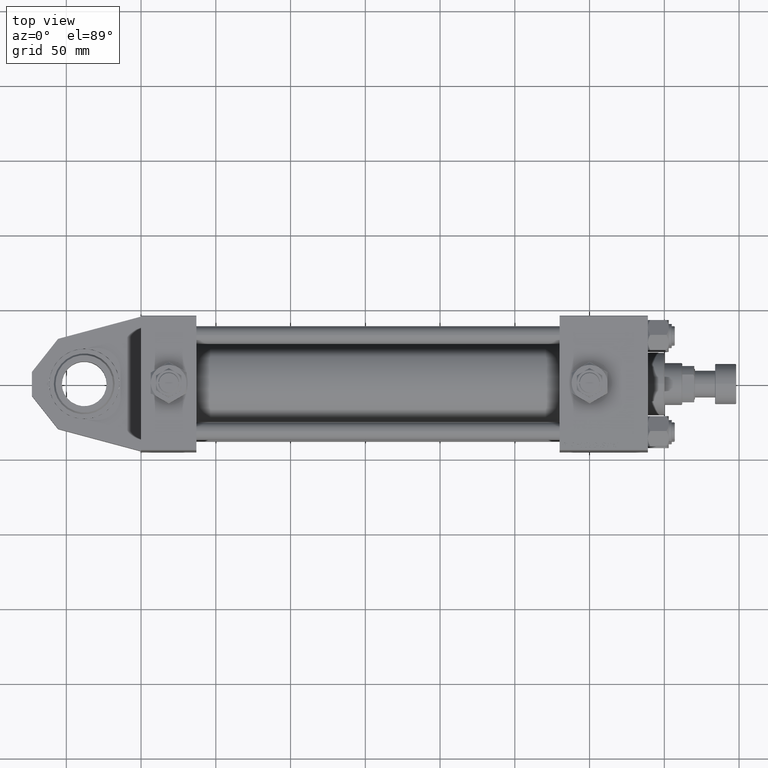
[diagram: clean part render]
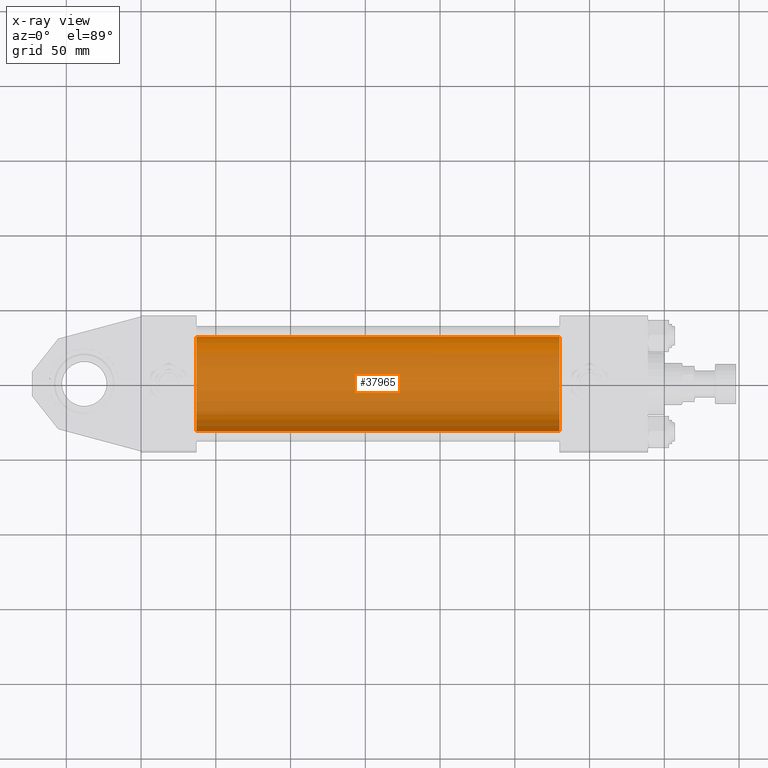
[diagram: x-ray — body ghosted, one internal face saturated and labeled with its STEP entity id]
A machine part, top view, then the same camera in x-ray: the body is ghosted and one INTERNAL B-rep face — a face not visible from any outside direction — is saturated and labeled: STEP entity #37965.
In plain terms, the highlighted cylindrical surface (partial cylindrical patch) has radius 31.5 mm, axis along (-1, 0, -0).
Its self-contained STEP definition (entity closure, byte-faithful):
#672 = ORIENTED_EDGE ( 'NONE', *, *, #44257, .T. ) ;
#3548 = AXIS2_PLACEMENT_3D ( 'NONE', #51131, #30871, #47389 ) ;
#7330 = AXIS2_PLACEMENT_3D ( 'NONE', #44740, #15961, #32199 ) ;
#8117 = CARTESIAN_POINT ( 'NONE',  ( 279.9999999999999432, -2.602085213965210642E-15, 31.50000000000000000 ) ) ;
#8595 = CARTESIAN_POINT ( 'NONE',  ( 37.00000000000000000, 1.255552203348951850E-15, -31.50000000000000000 ) ) ;
#10066 = DIRECTION ( 'NONE',  ( -1.000000000000000000, -0.000000000000000000, -0.000000000000000000 ) ) ;
#10076 = VECTOR ( 'NONE', #10066, 1000.000000000000000 ) ;
#10768 = DIRECTION ( 'NONE',  ( -1.000000000000000000, -0.000000000000000000, -0.000000000000000000 ) ) ;
#12613 = CARTESIAN_POINT ( 'NONE',  ( 37.00000000000000000, -2.602085213965210642E-15, 0.000000000000000000 ) ) ;
#15961 = DIRECTION ( 'NONE',  ( 1.000000000000000000, 0.000000000000000000, 0.000000000000000000 ) ) ;
#17506 = ORIENTED_EDGE ( 'NONE', *, *, #18468, .F. ) ;
#18468 = EDGE_CURVE ( 'NONE', #33847, #52482, #47263, .T. ) ;
#19136 = FACE_OUTER_BOUND ( 'NONE', #24261, .T. ) ;
#20154 = EDGE_CURVE ( 'NONE', #33847, #43369, #37920, .T. ) ;
#20594 = DIRECTION ( 'NONE',  ( 0.000000000000000000, 0.000000000000000000, -1.000000000000000000 ) ) ;
#21393 = CIRCLE ( 'NONE', #46918, 31.50000000000000000 ) ;
#21613 = CARTESIAN_POINT ( 'NONE',  ( 279.9999999999999432, 1.255552203348951850E-15, -31.50000000000000000 ) ) ;
#24261 = EDGE_LOOP ( 'NONE', ( #37427, #672, #24464, #17506 ) ) ;
#24464 = ORIENTED_EDGE ( 'NONE', *, *, #38301, .F. ) ;
#25125 = DIRECTION ( 'NONE',  ( 1.000000000000000000, 0.000000000000000000, 0.000000000000000000 ) ) ;
#27975 = VERTEX_POINT ( 'NONE', #8595 ) ;
#30604 = CYLINDRICAL_SURFACE ( 'NONE', #3548, 31.50000000000000000 ) ;
#30871 = DIRECTION ( 'NONE',  ( -1.000000000000000000, -0.000000000000000000, -0.000000000000000000 ) ) ;
#32199 = DIRECTION ( 'NONE',  ( 0.000000000000000000, 0.000000000000000000, -1.000000000000000000 ) ) ;
#33847 = VERTEX_POINT ( 'NONE', #8117 ) ;
#37427 = ORIENTED_EDGE ( 'NONE', *, *, #20154, .T. ) ;
#37920 = CIRCLE ( 'NONE', #7330, 31.50000000000000000 ) ;
#37965 = ADVANCED_FACE ( 'NONE', ( #19136 ), #30604, .F. ) ;
#38039 = LINE ( 'NONE', #49783, #10076 ) ;
#38301 = EDGE_CURVE ( 'NONE', #52482, #27975, #21393, .T. ) ;
#42262 = CARTESIAN_POINT ( 'NONE',  ( 37.00000000000000000, -2.602085213965210642E-15, 31.50000000000000000 ) ) ;
#43265 = CARTESIAN_POINT ( 'NONE',  ( 279.9999999999999432, -2.602085213965210642E-15, 31.50000000000000000 ) ) ;
#43369 = VERTEX_POINT ( 'NONE', #21613 ) ;
#44257 = EDGE_CURVE ( 'NONE', #43369, #27975, #38039, .T. ) ;
#44740 = CARTESIAN_POINT ( 'NONE',  ( 279.9999999999999432, -2.602085213965210642E-15, 0.000000000000000000 ) ) ;
#46363 = VECTOR ( 'NONE', #10768, 1000.000000000000000 ) ;
#46918 = AXIS2_PLACEMENT_3D ( 'NONE', #12613, #25125, #20594 ) ;
#47263 = LINE ( 'NONE', #43265, #46363 ) ;
#47389 = DIRECTION ( 'NONE',  ( 0.000000000000000000, 0.000000000000000000, 1.000000000000000000 ) ) ;
#49783 = CARTESIAN_POINT ( 'NONE',  ( 279.9999999999999432, 1.255552203348951850E-15, -31.50000000000000000 ) ) ;
#51131 = CARTESIAN_POINT ( 'NONE',  ( 279.9999999999999432, -2.602085213965210642E-15, 0.000000000000000000 ) ) ;
#52482 = VERTEX_POINT ( 'NONE', #42262 ) ;